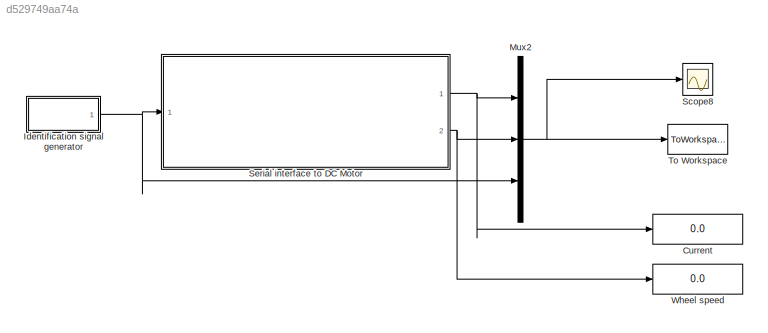
MODEL slx_d529749aa74a
KIND model
CONFIG AbsTol = auto
CONFIG EnableMultiTasking = off
CONFIG FixedStep = 0.01
CONFIG MaxStep = 8.0
CONFIG MinStep = auto
CONFIG RelTol = 1e-3
CONFIG SampleTimeConstraint = Unconstrained
CONFIG Solver = ode8
CONFIG SolverName = ode8
CONFIG StartTime = 0.0
CONFIG StopTime = 100
BLOCK [Display] Current
  Decimation = 1
  Ports = [1]
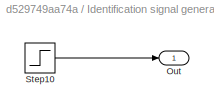
BLOCK [SubSystem] Identification signal generator
  Ports = [0, 1]
  RequestExecContextInheritance = off
  Variant = off
BLOCK [Outport] Identification signal generator/Out
  IconDisplay = Port number
BLOCK [Step] Identification signal generator/Step10
  After = 60
  Before = 40
  SampleTime = 0
  Time = 5
BLOCK [Mux] Mux2
  DisplayOption = bar
  Inputs = 3
  Ports = [3, 1]
BLOCK [Scope] Scope8
  NumInputPorts = 1
  Ports = [1]
  ScopeSpecificationString = Simulink.scopes.TimeScopeBlockCfg('CurrentConfiguration', extmgr.ConfigurationSet(extmgr.Configuration('Core','General UI',true),extmgr.Configuration('Core','Source UI',true),extmgr.Configuration('Sources','WiredSimulink',true,'DataLoggingVariableName','ScopeData1'),extmgr.Configuration('Visuals','Time Domain',true,'SerializedDisplays',{struct('MinYLimReal','-924.35052','MaxYLimReal','7319.15472',...<+1449ch>
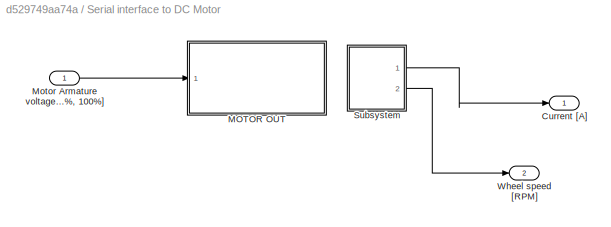
BLOCK [SubSystem] Serial interface to DC Motor 
  Ports = [1, 2]
  RequestExecContextInheritance = off
  Variant = off
BLOCK [Outport] Serial interface to DC Motor /Current [A]
  IconDisplay = Port number
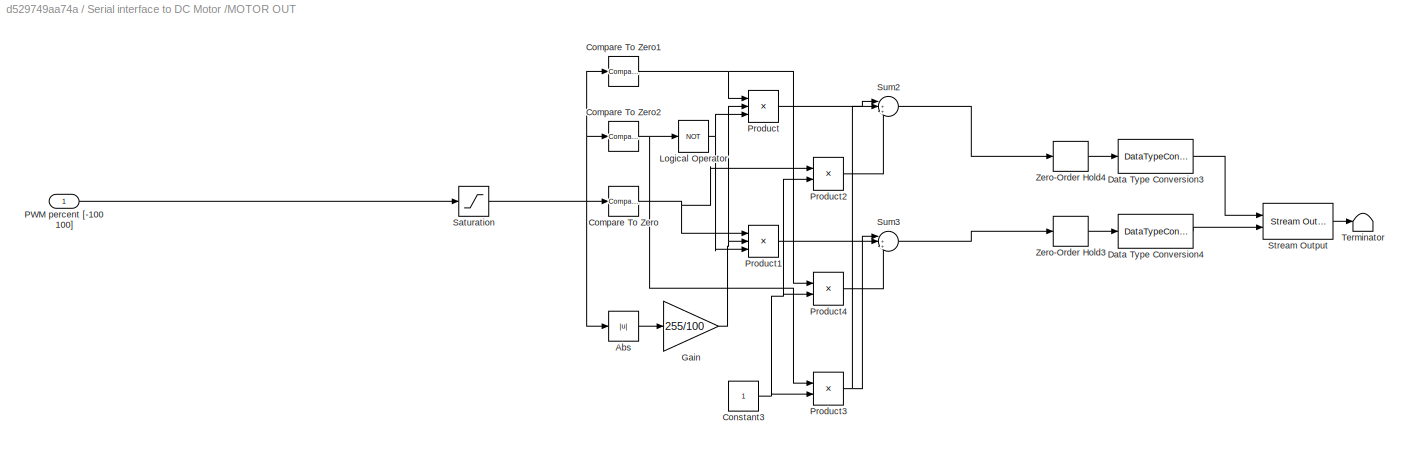
BLOCK [SubSystem] Serial interface to DC Motor /MOTOR OUT
  Ports = [1]
  RequestExecContextInheritance = off
  Variant = off
BLOCK [Abs] Serial interface to DC Motor /MOTOR OUT/Abs
  SaturateOnIntegerOverflow = off
BLOCK [Reference] Serial interface to DC Motor /MOTOR OUT/Compare To Zero  REF=simulink/Logic and Bit
Operations/Compare
To Zero
  Ports = [1, 1]
  SourceBlock = simulink/Logic and Bit\nOperations/Compare\nTo Zero
  SourceProductBaseCode = SL
  SourceProductName = Simulink
  SourceType = Compare To Zero
BLOCK [Reference] Serial interface to DC Motor /MOTOR OUT/Compare To Zero1  REF=simulink/Logic and Bit
Operations/Compare
To Zero
  Ports = [1, 1]
  SourceBlock = simulink/Logic and Bit\nOperations/Compare\nTo Zero
  SourceProductBaseCode = SL
  SourceProductName = Simulink
  SourceType = Compare To Zero
BLOCK [Reference] Serial interface to DC Motor /MOTOR OUT/Compare To Zero2  REF=simulink/Logic and Bit
Operations/Compare
To Zero
  Ports = [1, 1]
  SourceBlock = simulink/Logic and Bit\nOperations/Compare\nTo Zero
  SourceProductBaseCode = SL
  SourceProductName = Simulink
  SourceType = Compare To Zero
BLOCK [Constant] Serial interface to DC Motor /MOTOR OUT/Constant3
BLOCK [DataTypeConversion] Serial interface to DC Motor /MOTOR OUT/Data Type Conversion3
  OutDataTypeStr = uint8
  OutMax = [255]
  OutMin = [0]
  RndMeth = Nearest
  SaturateOnIntegerOverflow = off
BLOCK [DataTypeConversion] Serial interface to DC Motor /MOTOR OUT/Data Type Conversion4
  OutDataTypeStr = uint8
  OutMax = [255]
  OutMin = [0]
  RndMeth = Nearest
  SaturateOnIntegerOverflow = off
BLOCK [Gain] Serial interface to DC Motor /MOTOR OUT/Gain
  Gain = 255/100
  OutDataTypeStr = Inherit: Inherit via internal rule
  ParamDataTypeStr = Inherit: Inherit via internal rule
  SaturateOnIntegerOverflow = off
BLOCK [Logic] Serial interface to DC Motor /MOTOR OUT/Logical Operator
  AllPortsSameDT = off
  Operator = NOT
  OutDataTypeStr = boolean
  Ports = [1, 1]
BLOCK [Inport] Serial interface to DC Motor /MOTOR OUT/PWM percent [-100 100]
  IconDisplay = Port number
BLOCK [Product] Serial interface to DC Motor /MOTOR OUT/Product
  InputSameDT = off
  Inputs = 3
  OutDataTypeStr = Inherit: Inherit via internal rule
  Ports = [3, 1]
  RndMeth = Floor
  SaturateOnIntegerOverflow = off
BLOCK [Product] Serial interface to DC Motor /MOTOR OUT/Product1
  InputSameDT = off
  Inputs = 3
  OutDataTypeStr = Inherit: Inherit via internal rule
  Ports = [3, 1]
  RndMeth = Floor
  SaturateOnIntegerOverflow = off
BLOCK [Product] Serial interface to DC Motor /MOTOR OUT/Product2
  InputSameDT = off
  OutDataTypeStr = Inherit: Inherit via internal rule
  Ports = [2, 1]
  RndMeth = Floor
  SaturateOnIntegerOverflow = off
BLOCK [Product] Serial interface to DC Motor /MOTOR OUT/Product3
  InputSameDT = off
  OutDataTypeStr = Inherit: Inherit via internal rule
  Ports = [2, 1]
  RndMeth = Floor
  SaturateOnIntegerOverflow = off
BLOCK [Product] Serial interface to DC Motor /MOTOR OUT/Product4
  InputSameDT = off
  OutDataTypeStr = Inherit: Inherit via internal rule
  Ports = [2, 1]
  RndMeth = Floor
  SaturateOnIntegerOverflow = off
BLOCK [Saturate] Serial interface to DC Motor /MOTOR OUT/Saturation
  InputPortMap = u0
  LowerLimit = -100
  Ports = [1, 1]
  UpperLimit = 100
BLOCK [Reference] Serial interface to DC Motor /MOTOR OUT/Stream Output  REF=sldrtlib/Stream Output
  AttributesFormatString = Standard Devices\nSerial Port [4h]
  Ports = [2, 1]
  SourceBlock = sldrtlib/Stream Output
  SourceProductBaseCode = WT
  SourceProductName = Simulink Desktop Real-Time
  SourceType = Simulink Desktop Real-Time Stream Output
BLOCK [Sum] Serial interface to DC Motor /MOTOR OUT/Sum2
  IconShape = round
  InputSameDT = off
  Inputs = |+++
  OutDataTypeStr = Inherit: Inherit via internal rule
  Ports = [3, 1]
  SaturateOnIntegerOverflow = off
BLOCK [Sum] Serial interface to DC Motor /MOTOR OUT/Sum3
  IconShape = round
  InputSameDT = off
  Inputs = |+++
  OutDataTypeStr = Inherit: Inherit via internal rule
  Ports = [3, 1]
  SaturateOnIntegerOverflow = off
BLOCK [Terminator] Serial interface to DC Motor /MOTOR OUT/Terminator
BLOCK [ZeroOrderHold] Serial interface to DC Motor /MOTOR OUT/Zero-Order Hold3
  SampleTime = -1
BLOCK [ZeroOrderHold] Serial interface to DC Motor /MOTOR OUT/Zero-Order Hold4
  SampleTime = -1
BLOCK [Inport] Serial interface to DC Motor /Motor Armature voltage PWM[-100%, 100%] 
  IconDisplay = Port number
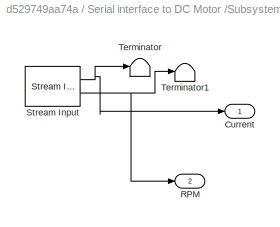
BLOCK [SubSystem] Serial interface to DC Motor /Subsystem
  Ports = [0, 2]
  RequestExecContextInheritance = off
  Variant = off
BLOCK [Outport] Serial interface to DC Motor /Subsystem/Current
  IconDisplay = Port number
BLOCK [Outport] Serial interface to DC Motor /Subsystem/RPM 
  IconDisplay = Port number
  Port = 2
BLOCK [Reference] Serial interface to DC Motor /Subsystem/Stream Input  REF=sldrtlib/Stream Input
  AttributesFormatString = Serial Port [4]
  Ports = [0, 2]
  SourceBlock = sldrtlib/Stream Input
  SourceProductBaseCode = WT
  SourceProductName = Simulink Desktop Real-Time
  SourceType = Simulink Desktop Real-Time Stream Input
BLOCK [Terminator] Serial interface to DC Motor /Subsystem/Terminator
BLOCK [Terminator] Serial interface to DC Motor /Subsystem/Terminator1
BLOCK [Outport] Serial interface to DC Motor /Wheel speed [RPM]
  IconDisplay = Port number
  Port = 2
BLOCK [ToWorkspace] To Workspace
  FixptAsFi = on
  MaxDataPoints = inf
  Ports = [1]
  SampleTime = -1
  Save2DSignal = 3-D array (concatenate along third dimension)
  SaveFormat = Timeseries
  VariableName = simout
BLOCK [Display] Wheel speed
  Decimation = 1
  Ports = [1]
LINE Identification signal generator/Step10:1 -> Identification signal generator/Out:1
NET Identification signal generator:1 -> Mux2:3, Serial interface to DC Motor :1
NET Mux2:1 -> Scope8:1, To Workspace:1
LINE Serial interface to DC Motor /MOTOR OUT/Abs:1 -> Serial interface to DC Motor /MOTOR OUT/Gain:1
NET Serial interface to DC Motor /MOTOR OUT/Compare To Zero1:1 -> Serial interface to DC Motor /MOTOR OUT/Product4:1, Serial interface to DC Motor /MOTOR OUT/Product:1
NET Serial interface to DC Motor /MOTOR OUT/Compare To Zero2:1 -> Serial interface to DC Motor /MOTOR OUT/Logical Operator:1, Serial interface to DC Motor /MOTOR OUT/Product3:1
NET Serial interface to DC Motor /MOTOR OUT/Compare To Zero:1 -> Serial interface to DC Motor /MOTOR OUT/Product1:1, Serial interface to DC Motor /MOTOR OUT/Product2:1
NET Serial interface to DC Motor /MOTOR OUT/Constant3:1 -> Serial interface to DC Motor /MOTOR OUT/Product2:2, Serial interface to DC Motor /MOTOR OUT/Product3:2, Serial interface to DC Motor /MOTOR OUT/Product4:2
LINE Serial interface to DC Motor /MOTOR OUT/Data Type Conversion3:1 -> Serial interface to DC Motor /MOTOR OUT/Stream Output:1
LINE Serial interface to DC Motor /MOTOR OUT/Data Type Conversion4:1 -> Serial interface to DC Motor /MOTOR OUT/Stream Output:2
NET Serial interface to DC Motor /MOTOR OUT/Gain:1 -> Serial interface to DC Motor /MOTOR OUT/Product1:2, Serial interface to DC Motor /MOTOR OUT/Product:2
NET Serial interface to DC Motor /MOTOR OUT/Logical Operator:1 -> Serial interface to DC Motor /MOTOR OUT/Product1:3, Serial interface to DC Motor /MOTOR OUT/Product:3
LINE Serial interface to DC Motor /MOTOR OUT/PWM percent [-100 100]:1 -> Serial interface to DC Motor /MOTOR OUT/Saturation:1
LINE Serial interface to DC Motor /MOTOR OUT/Product1:1 -> Serial interface to DC Motor /MOTOR OUT/Sum3:1
LINE Serial interface to DC Motor /MOTOR OUT/Product2:1 -> Serial interface to DC Motor /MOTOR OUT/Sum2:3
NET Serial interface to DC Motor /MOTOR OUT/Product3:1 -> Serial interface to DC Motor /MOTOR OUT/Sum2:2, Serial interface to DC Motor /MOTOR OUT/Sum3:2
LINE Serial interface to DC Motor /MOTOR OUT/Product4:1 -> Serial interface to DC Motor /MOTOR OUT/Sum3:3
LINE Serial interface to DC Motor /MOTOR OUT/Product:1 -> Serial interface to DC Motor /MOTOR OUT/Sum2:1
NET Serial interface to DC Motor /MOTOR OUT/Saturation:1 -> Serial interface to DC Motor /MOTOR OUT/Abs:1, Serial interface to DC Motor /MOTOR OUT/Compare To Zero1:1, Serial interface to DC Motor /MOTOR OUT/Compare To Zero2:1, Serial interface to DC Motor /MOTOR OUT/Compare To Zero:1
LINE Serial interface to DC Motor /MOTOR OUT/Stream Output:1 -> Serial interface to DC Motor /MOTOR OUT/Terminator:1
LINE Serial interface to DC Motor /MOTOR OUT/Sum2:1 -> Serial interface to DC Motor /MOTOR OUT/Zero-Order Hold4:1
LINE Serial interface to DC Motor /MOTOR OUT/Sum3:1 -> Serial interface to DC Motor /MOTOR OUT/Zero-Order Hold3:1
LINE Serial interface to DC Motor /MOTOR OUT/Zero-Order Hold3:1 -> Serial interface to DC Motor /MOTOR OUT/Data Type Conversion4:1
LINE Serial interface to DC Motor /MOTOR OUT/Zero-Order Hold4:1 -> Serial interface to DC Motor /MOTOR OUT/Data Type Conversion3:1
LINE Serial interface to DC Motor /Motor Armature voltage PWM[-100%, 100%] :1 -> Serial interface to DC Motor /MOTOR OUT:1
NET Serial interface to DC Motor /Subsystem/Stream Input:1 -> Serial interface to DC Motor /Subsystem/Current:1, Serial interface to DC Motor /Subsystem/Terminator:1
NET Serial interface to DC Motor /Subsystem/Stream Input:2 -> Serial interface to DC Motor /Subsystem/RPM :1, Serial interface to DC Motor /Subsystem/Terminator1:1
LINE Serial interface to DC Motor /Subsystem:1 -> Serial interface to DC Motor /Current [A]:1
LINE Serial interface to DC Motor /Subsystem:2 -> Serial interface to DC Motor /Wheel speed [RPM]:1
NET Serial interface to DC Motor :1 -> Current:1, Mux2:1
NET Serial interface to DC Motor :2 -> Mux2:2, Wheel speed:1
note: NET lines group one-source signal fan-out (src -> all destinations, sorted); 1:1 wires keep LINE
